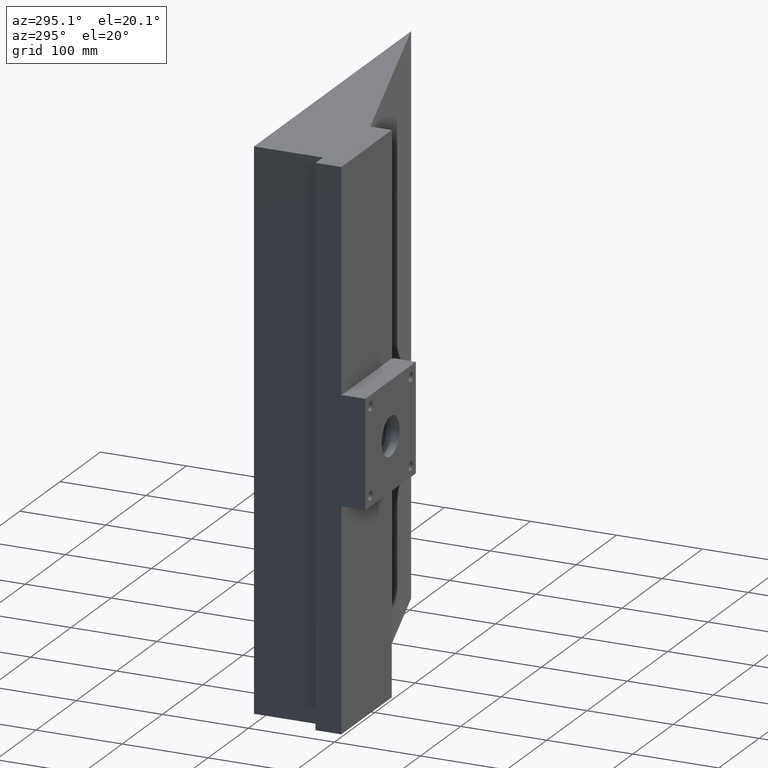
[diagram: clean part render]
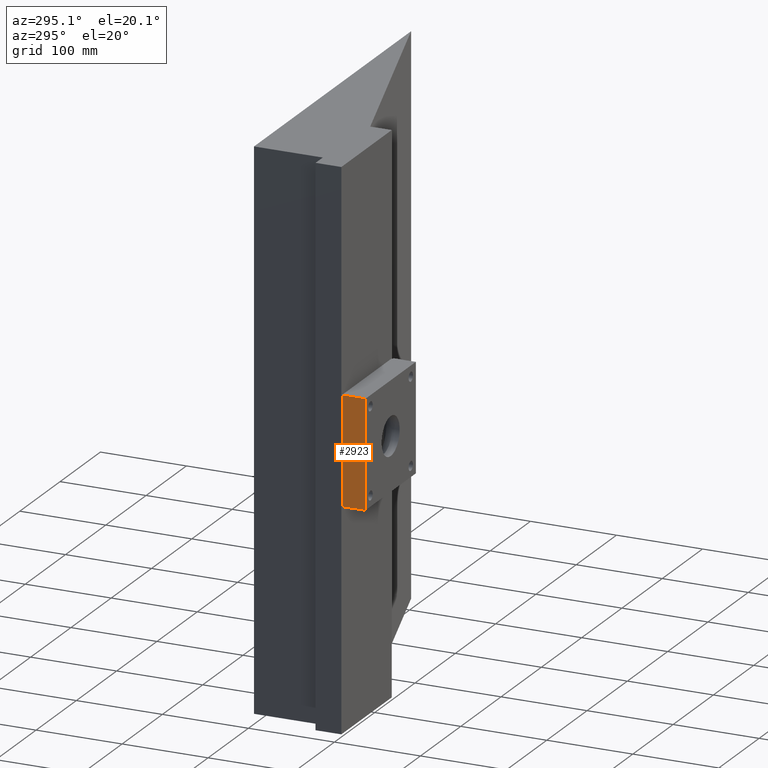
[diagram: same view with one face highlighted and labeled with its STEP entity id]
A machine part, auxiliary view. The second image highlights one B-rep face of the part: STEP entity #2923.
In plain terms, the highlighted planar face has unit normal (1, 0, -0).
Its self-contained STEP definition (entity closure, byte-faithful):
#4 = EDGE_LOOP ( 'NONE', ( #1062, #1301, #1759, #941 ) ) ;
#16 = CARTESIAN_POINT ( 'NONE',  ( -104.1163824607953200, -138.0000000000000300, -62.50000000000061100 ) ) ;
#483 = VERTEX_POINT ( 'NONE', #1928 ) ;
#660 = DIRECTION ( 'NONE',  ( 1.110223024625156500E-016, 0.0000000000000000000, 1.000000000000000000 ) ) ;
#724 = CARTESIAN_POINT ( 'NONE',  ( -104.1163824607953200, -112.0000000000000400, -62.50000000000061100 ) ) ;
#738 = VERTEX_POINT ( 'NONE', #16 ) ;
#748 = CARTESIAN_POINT ( 'NONE',  ( -104.1163824607953200, -112.0000000000000400, 62.49999999999938900 ) ) ;
#894 = DIRECTION ( 'NONE',  ( -0.0000000000000000000, -1.000000000000000000, -0.0000000000000000000 ) ) ;
#919 = CARTESIAN_POINT ( 'NONE',  ( -104.1163824607953200, -112.0000000000000400, -62.50000000000061100 ) ) ;
#941 = ORIENTED_EDGE ( 'NONE', *, *, #1326, .T. ) ;
#955 = VERTEX_POINT ( 'NONE', #1748 ) ;
#971 = VECTOR ( 'NONE', #894, 1000.000000000000000 ) ;
#986 = DIRECTION ( 'NONE',  ( 1.000000000000000000, 0.0000000000000000000, -1.110223024625156500E-016 ) ) ;
#1051 = CARTESIAN_POINT ( 'NONE',  ( -104.1163824607953200, -112.0000000000000400, 62.49999999999938900 ) ) ;
#1062 = ORIENTED_EDGE ( 'NONE', *, *, #2010, .T. ) ;
#1164 = LINE ( 'NONE', #919, #2493 ) ;
#1301 = ORIENTED_EDGE ( 'NONE', *, *, #2540, .F. ) ;
#1326 = EDGE_CURVE ( 'NONE', #483, #738, #1164, .T. ) ;
#1560 = LINE ( 'NONE', #748, #971 ) ;
#1672 = VECTOR ( 'NONE', #2911, 1000.000000000000000 ) ;
#1684 = LINE ( 'NONE', #2457, #1672 ) ;
#1748 = CARTESIAN_POINT ( 'NONE',  ( -104.1163824607953200, -138.0000000000000300, 62.49999999999938900 ) ) ;
#1757 = DIRECTION ( 'NONE',  ( -0.0000000000000000000, -1.000000000000000000, -0.0000000000000000000 ) ) ;
#1759 = ORIENTED_EDGE ( 'NONE', *, *, #1972, .F. ) ;
#1771 = LINE ( 'NONE', #724, #1809 ) ;
#1809 = VECTOR ( 'NONE', #660, 1000.000000000000000 ) ;
#1928 = CARTESIAN_POINT ( 'NONE',  ( -104.1163824607953200, -112.0000000000000400, -62.50000000000061100 ) ) ;
#1972 = EDGE_CURVE ( 'NONE', #483, #2050, #1771, .T. ) ;
#2010 = EDGE_CURVE ( 'NONE', #738, #955, #1684, .T. ) ;
#2050 = VERTEX_POINT ( 'NONE', #1051 ) ;
#2123 = CARTESIAN_POINT ( 'NONE',  ( -104.1163824607953200, -112.0000000000000400, -62.50000000000061100 ) ) ;
#2199 = DIRECTION ( 'NONE',  ( -1.110223024625156500E-016, 0.0000000000000000000, -1.000000000000000000 ) ) ;
#2334 = PLANE ( 'NONE',  #2546 ) ;
#2457 = CARTESIAN_POINT ( 'NONE',  ( -104.1163824607953200, -138.0000000000000300, -62.50000000000061100 ) ) ;
#2493 = VECTOR ( 'NONE', #1757, 1000.000000000000000 ) ;
#2519 = FACE_OUTER_BOUND ( 'NONE', #4, .T. ) ;
#2540 = EDGE_CURVE ( 'NONE', #2050, #955, #1560, .T. ) ;
#2546 = AXIS2_PLACEMENT_3D ( 'NONE', #2123, #986, #2199 ) ;
#2911 = DIRECTION ( 'NONE',  ( 1.110223024625156500E-016, 0.0000000000000000000, 1.000000000000000000 ) ) ;
#2923 = ADVANCED_FACE ( 'NONE', ( #2519 ), #2334, .F. ) ;